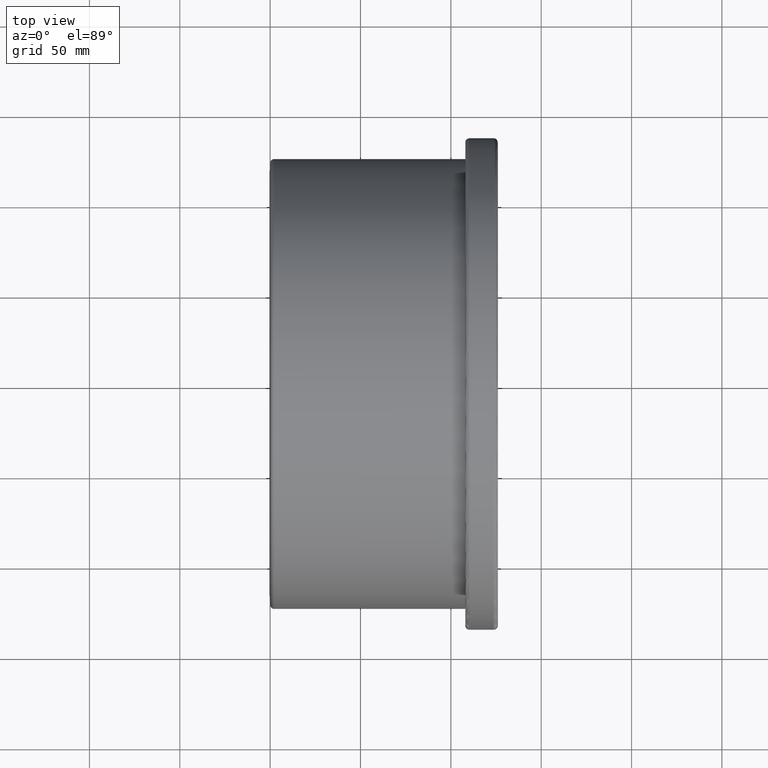
[diagram: clean part render]
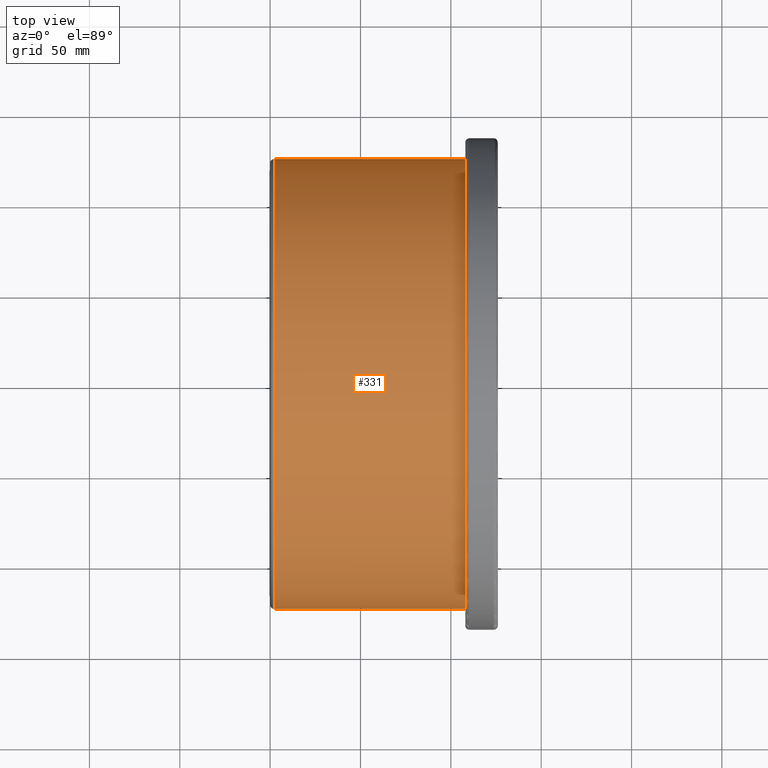
[diagram: same view with one face highlighted and labeled with its STEP entity id]
A machine part, top view. The second image highlights one B-rep face of the part: STEP entity #331.
In plain terms, the highlighted cylindrical surface (bore or boss wall) has radius 124.5 mm, axis along (-1, 0, 0).
Its self-contained STEP definition (entity closure, byte-faithful):
#23=CYLINDRICAL_SURFACE('',#379,124.5);
#64=FACE_BOUND('',#142,.T.);
#92=FACE_OUTER_BOUND('',#141,.T.);
#141=EDGE_LOOP('',(#291));
#142=EDGE_LOOP('',(#292));
#166=CIRCLE('',#376,124.5);
#167=CIRCLE('',#378,124.5);
#194=VERTEX_POINT('',#2489);
#195=VERTEX_POINT('',#2492);
#227=EDGE_CURVE('',#194,#194,#166,.T.);
#228=EDGE_CURVE('',#195,#195,#167,.T.);
#291=ORIENTED_EDGE('',*,*,#227,.T.);
#292=ORIENTED_EDGE('',*,*,#228,.F.);
#331=ADVANCED_FACE('',(#92,#64),#23,.T.);
#376=AXIS2_PLACEMENT_3D('',#2490,#465,#466);
#378=AXIS2_PLACEMENT_3D('',#2493,#469,#470);
#379=AXIS2_PLACEMENT_3D('',#2494,#471,#472);
#465=DIRECTION('center_axis',(-1.,0.,0.));
#466=DIRECTION('ref_axis',(0.,0.,1.));
#469=DIRECTION('center_axis',(-1.,0.,0.));
#470=DIRECTION('ref_axis',(0.,1.,6.12323399573676E-17));
#471=DIRECTION('center_axis',(-1.,0.,0.));
#472=DIRECTION('ref_axis',(0.,-1.,0.));
#2489=CARTESIAN_POINT('',(108.,-124.5,0.));
#2490=CARTESIAN_POINT('Origin',(108.,0.,0.));
#2492=CARTESIAN_POINT('',(2.25,-124.5,7.62342632469227E-15));
#2493=CARTESIAN_POINT('Origin',(2.25,0.,0.));
#2494=CARTESIAN_POINT('Origin',(54.,0.,0.));